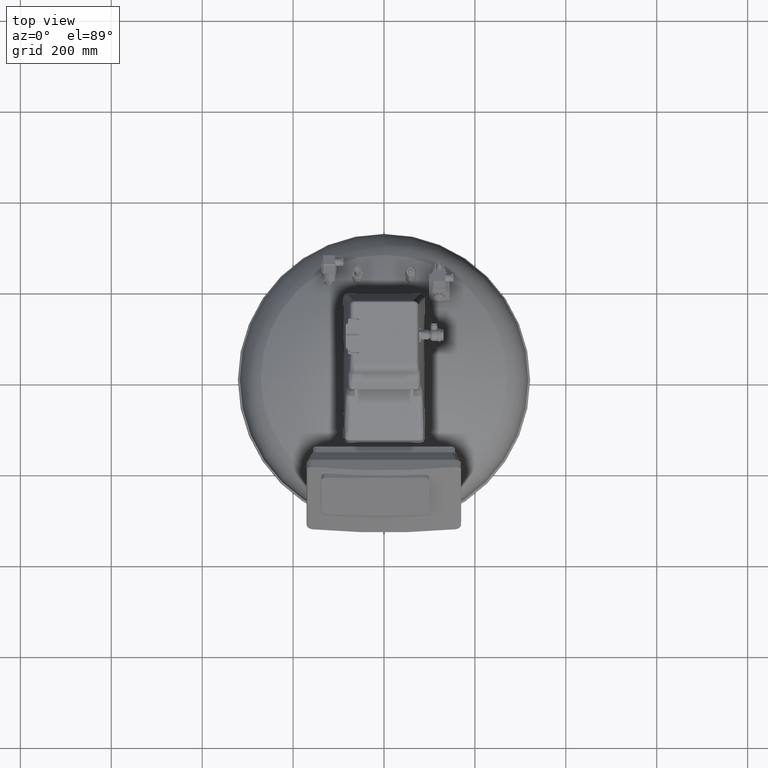
[diagram: clean part render]
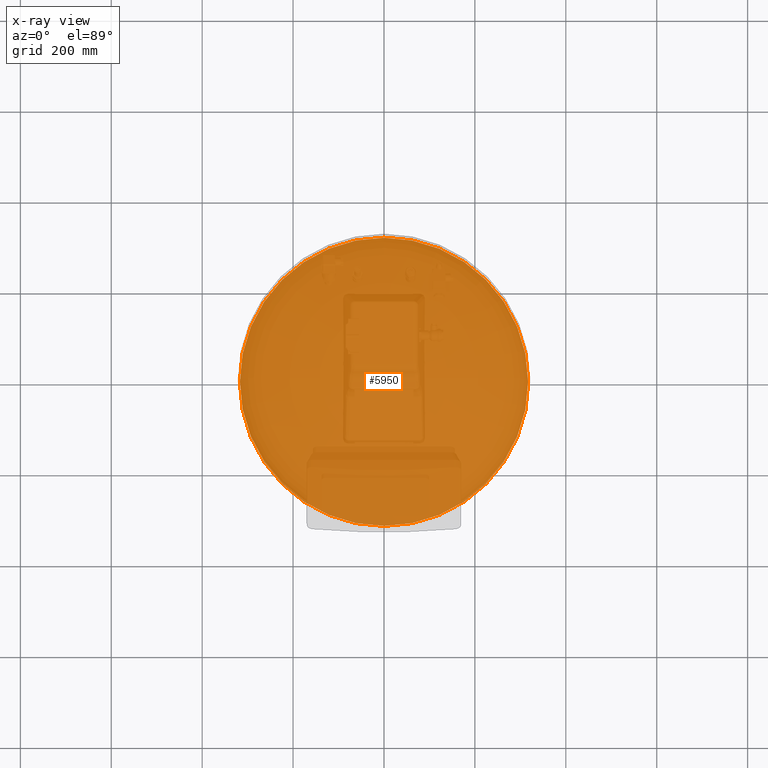
[diagram: x-ray — body ghosted, one internal face saturated and labeled with its STEP entity id]
A machine part, top view, then the same camera in x-ray: the body is ghosted and one INTERNAL B-rep face — a face not visible from any outside direction — is saturated and labeled: STEP entity #5950.
In plain terms, the highlighted planar face has unit normal (0, 0, 1).
Its self-contained STEP definition (entity closure, byte-faithful):
#5752=CARTESIAN_POINT('',(-317.0,-2.975892E-014,352.99999999999989));
#5753=VERTEX_POINT('',#5752);
#5762=CARTESIAN_POINT('',(317.0,9.061104E-015,352.99999999999994));
#5763=VERTEX_POINT('',#5762);
#5764=CARTESIAN_POINT('',(-1.558411E-014,-2.975892E-014,352.99999999999989));
#5765=DIRECTION('',(0.0,0.0,1.0));
#5766=DIRECTION('',(-1.0,0.0,0.0));
#5767=AXIS2_PLACEMENT_3D('',#5764,#5765,#5766);
#5768=CIRCLE('',#5767,317.0);
#5769=EDGE_CURVE('',#5763,#5753,#5768,.T.);
#5931=CARTESIAN_POINT('',(-1.558411E-014,-2.975892E-014,352.99999999999989));
#5932=DIRECTION('',(0.0,0.0,1.0));
#5933=DIRECTION('',(-1.0,0.0,0.0));
#5934=AXIS2_PLACEMENT_3D('',#5931,#5932,#5933);
#5935=CIRCLE('',#5934,317.0);
#5936=EDGE_CURVE('',#5753,#5763,#5935,.T.);
#5941=CARTESIAN_POINT('',(-158.5,-2.975892E-014,352.99999999999994));
#5942=DIRECTION('',(0.0,0.0,1.0));
#5943=DIRECTION('',(0.0,-1.0,0.0));
#5944=AXIS2_PLACEMENT_3D('',#5941,#5942,#5943);
#5945=PLANE('',#5944);
#5946=ORIENTED_EDGE('',*,*,#5936,.T.);
#5947=ORIENTED_EDGE('',*,*,#5769,.T.);
#5948=EDGE_LOOP('',(#5946,#5947));
#5949=FACE_OUTER_BOUND('',#5948,.T.);
#5950=ADVANCED_FACE('',(#5949),#5945,.T.);